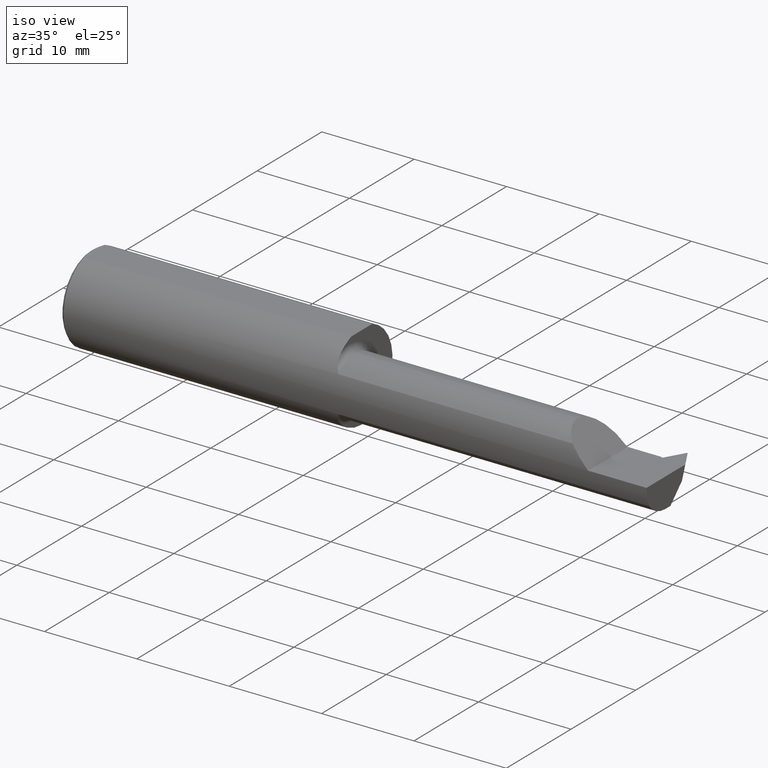
[diagram: clean part render]
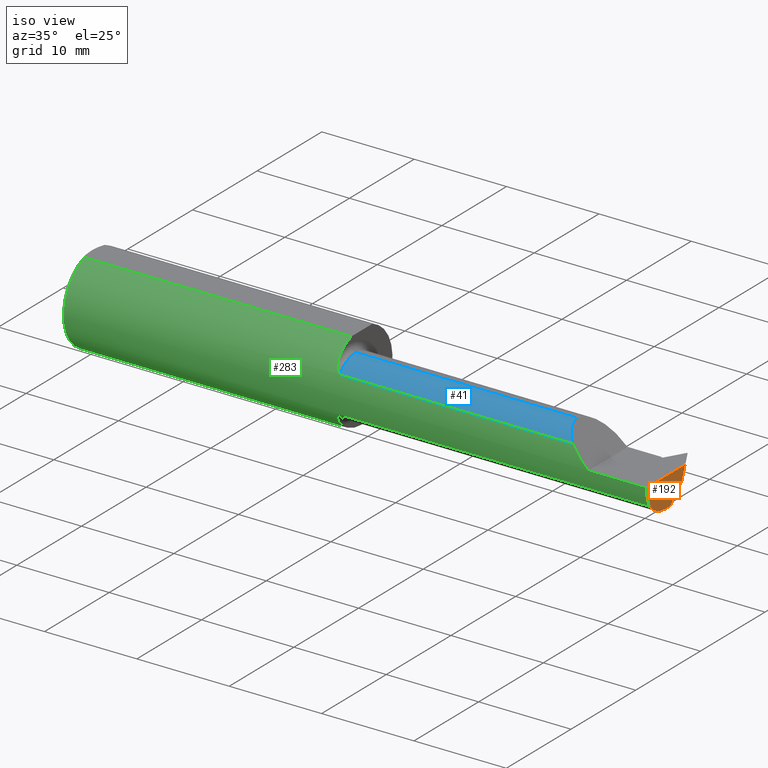
[diagram: same view with three faces highlighted in distinct colors, each labeled with its STEP entity id]
A machine part, iso view with three faces highlighted in distinct colors.
Their STEP definitions:

[orange] entity #192 — the highlighted planar face has unit normal (1, 0, 0).
#3 = ORIENTED_EDGE ( 'NONE', *, *, #866, .T. ) ;
#15 = LINE ( 'NONE', #472, #285 ) ;
#17 = DIRECTION ( 'NONE',  ( 1.000000000000000000, -0.000000000000000000, -0.000000000000000000 ) ) ;
#31 = EDGE_CURVE ( 'NONE', #632, #614, #894, .T. ) ;
#55 = CIRCLE ( 'NONE', #433, 0.1250000000000000000 ) ;
#106 = VECTOR ( 'NONE', #981, 39.37007874015748854 ) ;
#139 = CARTESIAN_POINT ( 'NONE',  ( 2.500000000000000000, -0.1707639599170698019, -0.07706940050007768384 ) ) ;
#147 = VECTOR ( 'NONE', #350, 39.37007874015748854 ) ;
#148 = CARTESIAN_POINT ( 'NONE',  ( 2.500000000000000000, 0.000000000000000000, 0.000000000000000000 ) ) ;
#159 = EDGE_CURVE ( 'NONE', #805, #632, #237, .T. ) ;
#165 = CARTESIAN_POINT ( 'NONE',  ( 2.500000000000000000, -0.07234999999999998377, 0.000000000000000000 ) ) ;
#192 = ADVANCED_FACE ( 'NONE', ( #299 ), #825, .T. ) ;
#212 = ORIENTED_EDGE ( 'NONE', *, *, #403, .T. ) ;
#237 = LINE ( 'NONE', #528, #718 ) ;
#250 = DIRECTION ( 'NONE',  ( 1.000000000000000000, 0.000000000000000000, 0.000000000000000000 ) ) ;
#285 = VECTOR ( 'NONE', #399, 39.37007874015748143 ) ;
#288 = CARTESIAN_POINT ( 'NONE',  ( 2.500000000000000000, -0.07234999999999999765, -0.1249999999999999861 ) ) ;
#294 = CARTESIAN_POINT ( 'NONE',  ( 2.500000000000000000, 0.04278184266129586577, -0.01547243479515399492 ) ) ;
#299 = FACE_OUTER_BOUND ( 'NONE', #637, .T. ) ;
#304 = EDGE_CURVE ( 'NONE', #614, #327, #960, .T. ) ;
#324 = CARTESIAN_POINT ( 'NONE',  ( 2.500000000000000000, -0.1873499999999998222, -6.429183357567480113E-17 ) ) ;
#327 = VERTEX_POINT ( 'NONE', #517 ) ;
#346 = VERTEX_POINT ( 'NONE', #139 ) ;
#350 = DIRECTION ( 'NONE',  ( 0.000000000000000000, -0.3401001459858867815, -0.9403892229818345827 ) ) ;
#372 = DIRECTION ( 'NONE',  ( 0.000000000000000000, 0.000000000000000000, -1.000000000000000000 ) ) ;
#399 = DIRECTION ( 'NONE',  ( -0.000000000000000000, 1.000000000000000000, -2.417245856451656750E-16 ) ) ;
#403 = EDGE_CURVE ( 'NONE', #346, #659, #55, .T. ) ;
#419 = ORIENTED_EDGE ( 'NONE', *, *, #31, .F. ) ;
#422 = CARTESIAN_POINT ( 'NONE',  ( 2.500000000000000000, 0.04837758664047866336, 0.000000000000000000 ) ) ;
#433 = AXIS2_PLACEMENT_3D ( 'NONE', #165, #17, #465 ) ;
#449 = DIRECTION ( 'NONE',  ( 1.000000000000000000, 0.000000000000000000, 0.000000000000000000 ) ) ;
#465 = DIRECTION ( 'NONE',  ( 0.000000000000000000, 0.000000000000000000, 1.000000000000000000 ) ) ;
#472 = CARTESIAN_POINT ( 'NONE',  ( 2.500000000000000000, 0.1395529379841212447, -0.1250000000000000278 ) ) ;
#481 = CARTESIAN_POINT ( 'NONE',  ( 2.500000000000000000, 0.02848634631988948215, -0.05500000000000006967 ) ) ;
#491 = ORIENTED_EDGE ( 'NONE', *, *, #304, .F. ) ;
#506 = CIRCLE ( 'NONE', #584, 0.1873499999999999888 ) ;
#517 = CARTESIAN_POINT ( 'NONE',  ( 2.500000000000000000, -0.04151365368011088880, -0.1249999999999999584 ) ) ;
#528 = CARTESIAN_POINT ( 'NONE',  ( 2.500000000000000000, 0.2999999999999999889, -6.429183357567480113E-17 ) ) ;
#533 = DIRECTION ( 'NONE',  ( -0.000000000000000000, 1.000000000000000000, -0.000000000000000000 ) ) ;
#544 = CARTESIAN_POINT ( 'NONE',  ( 2.500000000000000000, 0.000000000000000000, 0.000000000000000000 ) ) ;
#584 = AXIS2_PLACEMENT_3D ( 'NONE', #544, #250, #863 ) ;
#614 = VERTEX_POINT ( 'NONE', #481 ) ;
#632 = VERTEX_POINT ( 'NONE', #422 ) ;
#637 = EDGE_LOOP ( 'NONE', ( #3, #491, #419, #862, #820, #212 ) ) ;
#659 = VERTEX_POINT ( 'NONE', #288 ) ;
#718 = VECTOR ( 'NONE', #533, 39.37007874015748143 ) ;
#729 = CARTESIAN_POINT ( 'NONE',  ( 2.500000000000000000, 0.02848634631988948215, -0.05500000000000006967 ) ) ;
#805 = VERTEX_POINT ( 'NONE', #324 ) ;
#820 = ORIENTED_EDGE ( 'NONE', *, *, #831, .T. ) ;
#825 = PLANE ( 'NONE',  #958 ) ;
#831 = EDGE_CURVE ( 'NONE', #805, #346, #506, .T. ) ;
#862 = ORIENTED_EDGE ( 'NONE', *, *, #159, .F. ) ;
#863 = DIRECTION ( 'NONE',  ( 0.000000000000000000, 0.000000000000000000, -1.000000000000000000 ) ) ;
#866 = EDGE_CURVE ( 'NONE', #659, #327, #15, .T. ) ;
#894 = LINE ( 'NONE', #294, #147 ) ;
#958 = AXIS2_PLACEMENT_3D ( 'NONE', #148, #449, #372 ) ;
#960 = LINE ( 'NONE', #729, #106 ) ;
#981 = DIRECTION ( 'NONE',  ( 0.000000000000000000, -0.7071067811865497932, -0.7071067811865451302 ) ) ;

[blue] entity #41 — the highlighted cylindrical surface (edge-blend (fillet) strip) has radius 3.175 mm, axis along (-1, -0, -0).
#6 = CARTESIAN_POINT ( 'NONE',  ( 2.142479785539520787, -0.1466433954276125384, 0.1078702144604786056 ) ) ;
#35 = VERTEX_POINT ( 'NONE', #59 ) ;
#41 = ADVANCED_FACE ( 'NONE', ( #978 ), #594, .T. ) ;
#48 = ORIENTED_EDGE ( 'NONE', *, *, #625, .T. ) ;
#59 = CARTESIAN_POINT ( 'NONE',  ( 2.173280599499920918, -0.1707639599170693578, 0.07706940050007844711 ) ) ;
#61 = ORIENTED_EDGE ( 'NONE', *, *, #717, .T. ) ;
#62 = DIRECTION ( 'NONE',  ( 0.000000000000000000, 0.000000000000000000, -1.000000000000000000 ) ) ;
#75 = CARTESIAN_POINT ( 'NONE',  ( 2.173280599499920918, -0.1707639599170693578, 0.07706940050007844711 ) ) ;
#95 = CARTESIAN_POINT ( 'NONE',  ( 2.125349999999999628, -0.1114715001235029451, 0.1250000000000000278 ) ) ;
#100 = AXIS2_PLACEMENT_3D ( 'NONE', #221, #456, #62 ) ;
#104 = LINE ( 'NONE', #792, #651 ) ;
#128 = EDGE_CURVE ( 'NONE', #145, #745, #769, .T. ) ;
#145 = VERTEX_POINT ( 'NONE', #622 ) ;
#186 = EDGE_CURVE ( 'NONE', #145, #35, #934, .T. ) ;
#195 = DIRECTION ( 'NONE',  ( 1.000000000000000000, 0.000000000000000000, 0.000000000000000000 ) ) ;
#218 = VERTEX_POINT ( 'NONE', #781 ) ;
#221 = CARTESIAN_POINT ( 'NONE',  ( 1.180000000000000160, -0.07234999999999998377, 0.000000000000000000 ) ) ;
#245 = CARTESIAN_POINT ( 'NONE',  ( 1.155000000000000027, -0.07234999999999998377, 0.1250000000000000000 ) ) ;
#284 = CARTESIAN_POINT ( 'NONE',  ( 1.155000000000000027, -0.07234999999999998377, 0.000000000000000000 ) ) ;
#378 = DIRECTION ( 'NONE',  ( -1.000000000000000000, -0.000000000000000000, -0.000000000000000000 ) ) ;
#456 = DIRECTION ( 'NONE',  ( 1.000000000000000000, 0.000000000000000000, 0.000000000000000000 ) ) ;
#463 = AXIS2_PLACEMENT_3D ( 'NONE', #284, #512, #816 ) ;
#512 = DIRECTION ( 'NONE',  ( -1.000000000000000000, -0.000000000000000000, -0.000000000000000000 ) ) ;
#538 = CARTESIAN_POINT ( 'NONE',  ( 2.125349999999999184, -0.07234999999999998377, 0.1250000000000000000 ) ) ;
#594 = CYLINDRICAL_SURFACE ( 'NONE', #463, 0.1250000000000000000 ) ;
#622 = CARTESIAN_POINT ( 'NONE',  ( 2.125349999999999184, -0.07234999999999998377, 0.1250000000000000000 ) ) ;
#625 = EDGE_CURVE ( 'NONE', #218, #35, #104, .T. ) ;
#649 = EDGE_LOOP ( 'NONE', ( #799, #953, #61, #48 ) ) ;
#651 = VECTOR ( 'NONE', #195, 39.37007874015748143 ) ;
#696 = CIRCLE ( 'NONE', #100, 0.1250000000000000000 ) ;
#717 = EDGE_CURVE ( 'NONE', #745, #218, #696, .T. ) ;
#745 = VERTEX_POINT ( 'NONE', #815 ) ;
#769 = LINE ( 'NONE', #245, #945 ) ;
#781 = CARTESIAN_POINT ( 'NONE',  ( 1.180000000000000160, -0.1707639599170698019, 0.07706940050007766996 ) ) ;
#792 = CARTESIAN_POINT ( 'NONE',  ( 1.777500000000000080, -0.1707639599170698019, 0.07706940050007766996 ) ) ;
#799 = ORIENTED_EDGE ( 'NONE', *, *, #186, .F. ) ;
#815 = CARTESIAN_POINT ( 'NONE',  ( 1.180000000000000160, -0.07234999999999998377, 0.1250000000000000000 ) ) ;
#816 = DIRECTION ( 'NONE',  ( 0.000000000000000000, 0.000000000000000000, 1.000000000000000000 ) ) ;
#934 =( BOUNDED_CURVE ( )  B_SPLINE_CURVE ( 3, ( #538, #95, #6, #75 ),
 .UNSPECIFIED., .F., .F. ) 
 B_SPLINE_CURVE_WITH_KNOTS ( ( 4, 4 ),
 ( 0.000000000000000000, 0.9064365498903661500 ),
 .UNSPECIFIED. ) 
 CURVE ( )  GEOMETRIC_REPRESENTATION_ITEM ( )  RATIONAL_B_SPLINE_CURVE ( ( 1.000000000000000000, 0.9326950686634400967, 0.9326950686634400967, 1.000000000000000000 ) ) 
 REPRESENTATION_ITEM ( '' )  );
#945 = VECTOR ( 'NONE', #378, 39.37007874015748143 ) ;
#953 = ORIENTED_EDGE ( 'NONE', *, *, #128, .T. ) ;
#978 = FACE_OUTER_BOUND ( 'NONE', #649, .T. ) ;

[green] entity #283 — the highlighted cylindrical surface (partial cylindrical patch) has radius 4.7587 mm, axis along (-1, -0, -0).
#2 = CARTESIAN_POINT ( 'NONE',  ( 1.155424272813302844, -0.1340287381043765713, 0.1311054684688081062 ) ) ;
#7 = CARTESIAN_POINT ( 'NONE',  ( 1.176406265684706742, -0.1703893073657099799, 0.07790344355110682961 ) ) ;
#16 = EDGE_CURVE ( 'NONE', #564, #267, #25, .T. ) ;
#25 = CIRCLE ( 'NONE', #352, 0.1873499999999999888 ) ;
#35 = VERTEX_POINT ( 'NONE', #59 ) ;
#47 = LINE ( 'NONE', #563, #787 ) ;
#59 = CARTESIAN_POINT ( 'NONE',  ( 2.173280599499920918, -0.1707639599170693578, 0.07706940050007844711 ) ) ;
#72 = ORIENTED_EDGE ( 'NONE', *, *, #831, .F. ) ;
#76 = CARTESIAN_POINT ( 'NONE',  ( 1.158207941101452310, -0.1482224317505124178, 0.1148057762150967998 ) ) ;
#78 = DIRECTION ( 'NONE',  ( 1.000000000000000000, 0.000000000000000000, 0.000000000000000000 ) ) ;
#88 = EDGE_CURVE ( 'NONE', #707, #35, #90, .T. ) ;
#90 =( BOUNDED_CURVE ( )  B_SPLINE_CURVE ( 3, ( #394, #616, #607, #307 ),
 .UNSPECIFIED., .F., .T. ) 
 B_SPLINE_CURVE_WITH_KNOTS ( ( 4, 4 ),
 ( 4.714257142666966161, 5.136341099405672850 ),
 .UNSPECIFIED. ) 
 CURVE ( )  GEOMETRIC_REPRESENTATION_ITEM ( )  RATIONAL_B_SPLINE_CURVE ( ( 1.000000000000000000, 0.9852087820824323439, 0.9852087820824323439, 1.000000000000000000 ) ) 
 REPRESENTATION_ITEM ( '' )  );
#92 = CARTESIAN_POINT ( 'NONE',  ( 1.178119196786478584, -0.1707639599170698019, 0.07706940050007766996 ) ) ;
#97 = ORIENTED_EDGE ( 'NONE', *, *, #275, .T. ) ;
#102 = DIRECTION ( 'NONE',  ( 0.000000000000000000, 0.000000000000000000, 1.000000000000000000 ) ) ;
#104 = LINE ( 'NONE', #792, #651 ) ;
#115 = EDGE_CURVE ( 'NONE', #346, #256, #695, .T. ) ;
#119 = CARTESIAN_POINT ( 'NONE',  ( 1.155000000000000027, -0.1232518659295093050, 0.1410992560040422727 ) ) ;
#139 = CARTESIAN_POINT ( 'NONE',  ( 2.500000000000000000, -0.1707639599170698019, -0.07706940050007768384 ) ) ;
#141 = EDGE_CURVE ( 'NONE', #524, #899, #164, .T. ) ;
#142 = CARTESIAN_POINT ( 'NONE',  ( 1.173606395404012348, -0.1693970531853373485, -0.08003777040702697576 ) ) ;
#143 = CARTESIAN_POINT ( 'NONE',  ( 1.155000000000000027, 0.000000000000000000, 0.000000000000000000 ) ) ;
#152 = CARTESIAN_POINT ( 'NONE',  ( 1.155000000000000027, 0.000000000000000000, 0.000000000000000000 ) ) ;
#153 = CARTESIAN_POINT ( 'NONE',  ( 1.777500000000000080, -0.1707639599170698019, -0.07706940050007766996 ) ) ;
#155 = CARTESIAN_POINT ( 'NONE',  ( 1.172402770576354447, -0.1687580686002390362, 0.08138221229323124029 ) ) ;
#164 = LINE ( 'NONE', #927, #167 ) ;
#167 = VECTOR ( 'NONE', #230, 39.37007874015748143 ) ;
#176 = VERTEX_POINT ( 'NONE', #774 ) ;
#179 = CARTESIAN_POINT ( 'NONE',  ( 1.155000000000000027, -0.06325108694718215019, 0.1763499999999999790 ) ) ;
#195 = DIRECTION ( 'NONE',  ( 1.000000000000000000, 0.000000000000000000, 0.000000000000000000 ) ) ;
#199 = ORIENTED_EDGE ( 'NONE', *, *, #772, .F. ) ;
#215 = DIRECTION ( 'NONE',  ( -1.000000000000000000, -0.000000000000000000, -0.000000000000000000 ) ) ;
#218 = VERTEX_POINT ( 'NONE', #781 ) ;
#228 = EDGE_CURVE ( 'NONE', #445, #707, #621, .T. ) ;
#230 = DIRECTION ( 'NONE',  ( -1.000000000000000000, -0.000000000000000000, -0.000000000000000000 ) ) ;
#250 = DIRECTION ( 'NONE',  ( 1.000000000000000000, 0.000000000000000000, 0.000000000000000000 ) ) ;
#256 = VERTEX_POINT ( 'NONE', #744 ) ;
#267 = VERTEX_POINT ( 'NONE', #286 ) ;
#275 = EDGE_CURVE ( 'NONE', #805, #445, #896, .T. ) ;
#283 = ADVANCED_FACE ( 'NONE', ( #504 ), #889, .T. ) ;
#286 = CARTESIAN_POINT ( 'NONE',  ( 1.155000000000000027, 0.06325108694718213631, 0.1763499999999999790 ) ) ;
#289 = AXIS2_PLACEMENT_3D ( 'NONE', #325, #400, #102 ) ;
#295 = CARTESIAN_POINT ( 'NONE',  ( 0.01500000000000079568, 0.000000000000000000, 0.000000000000000000 ) ) ;
#306 = CIRCLE ( 'NONE', #321, 0.1873499999999999888 ) ;
#307 = CARTESIAN_POINT ( 'NONE',  ( 2.173280599499920918, -0.1707639599170693578, 0.07706940050007844711 ) ) ;
#321 = AXIS2_PLACEMENT_3D ( 'NONE', #295, #595, #691 ) ;
#324 = CARTESIAN_POINT ( 'NONE',  ( 2.500000000000000000, -0.1873499999999998222, -6.429183357567480113E-17 ) ) ;
#325 = CARTESIAN_POINT ( 'NONE',  ( 2.250000000000000000, 0.000000000000000000, 0.000000000000000000 ) ) ;
#328 = DIRECTION ( 'NONE',  ( 0.000000000000000000, 0.000000000000000000, -1.000000000000000000 ) ) ;
#345 = CARTESIAN_POINT ( 'NONE',  ( 2.250000000000000000, -0.1873496730715054903, 0.0003499999999991848933 ) ) ;
#346 = VERTEX_POINT ( 'NONE', #139 ) ;
#352 = AXIS2_PLACEMENT_3D ( 'NONE', #143, #738, #429 ) ;
#358 = CARTESIAN_POINT ( 'NONE',  ( 2.500000000000000000, 0.000000000000000000, 0.000000000000000000 ) ) ;
#362 = CARTESIAN_POINT ( 'NONE',  ( 1.169299808151414100, -0.1667638676707169643, -0.08543442767820326467 ) ) ;
#373 = EDGE_CURVE ( 'NONE', #402, #176, #306, .T. ) ;
#375 = CARTESIAN_POINT ( 'NONE',  ( 1.157031986092417419, -0.1437385609081069382, 0.1203809478627894530 ) ) ;
#377 = DIRECTION ( 'NONE',  ( 0.000000000000000000, 0.000000000000000000, -1.000000000000000000 ) ) ;
#385 = CARTESIAN_POINT ( 'NONE',  ( 1.161436535702075945, -0.1564726682735308183, 0.1032790376104839730 ) ) ;
#394 = CARTESIAN_POINT ( 'NONE',  ( 2.250000000000000000, -0.1873496730715054903, 0.0003499999999991848933 ) ) ;
#400 = DIRECTION ( 'NONE',  ( -1.000000000000000000, -0.000000000000000000, -0.000000000000000000 ) ) ;
#402 = VERTEX_POINT ( 'NONE', #542 ) ;
#414 = AXIS2_PLACEMENT_3D ( 'NONE', #152, #78, #377 ) ;
#429 = DIRECTION ( 'NONE',  ( 0.000000000000000000, 0.000000000000000000, -1.000000000000000000 ) ) ;
#432 = ORIENTED_EDGE ( 'NONE', *, *, #88, .T. ) ;
#437 = EDGE_CURVE ( 'NONE', #218, #556, #574, .T. ) ;
#442 = CARTESIAN_POINT ( 'NONE',  ( 1.178132574457247728, -0.1707639599170698297, -0.07706940050007773935 ) ) ;
#445 = VERTEX_POINT ( 'NONE', #909 ) ;
#462 = CARTESIAN_POINT ( 'NONE',  ( 0.01500000000000079568, 0.000000000000000000, 0.000000000000000000 ) ) ;
#466 = ORIENTED_EDGE ( 'NONE', *, *, #16, .F. ) ;
#468 = DIRECTION ( 'NONE',  ( -1.000000000000000000, -0.000000000000000000, -0.000000000000000000 ) ) ;
#504 = FACE_OUTER_BOUND ( 'NONE', #568, .T. ) ;
#506 = CIRCLE ( 'NONE', #584, 0.1873499999999999888 ) ;
#513 = DIRECTION ( 'NONE',  ( 0.000000000000000000, 0.000000000000000000, 1.000000000000000000 ) ) ;
#518 = ORIENTED_EDGE ( 'NONE', *, *, #373, .T. ) ;
#520 = CARTESIAN_POINT ( 'NONE',  ( 1.172430508348289102, -0.1687732045416835691, -0.08135065796925480819 ) ) ;
#524 = VERTEX_POINT ( 'NONE', #179 ) ;
#535 = CARTESIAN_POINT ( 'NONE',  ( 1.169265545959849550, -0.1667364282984898916, 0.08548857678050772457 ) ) ;
#542 = CARTESIAN_POINT ( 'NONE',  ( 0.01500000000000079568, 0.000000000000000000, -0.1873499999999999888 ) ) ;
#544 = CARTESIAN_POINT ( 'NONE',  ( 2.500000000000000000, 0.000000000000000000, 0.000000000000000000 ) ) ;
#556 = VERTEX_POINT ( 'NONE', #119 ) ;
#559 = CARTESIAN_POINT ( 'NONE',  ( 1.155000000000000027, -0.1232518659295093050, -0.1410992560040422727 ) ) ;
#563 = CARTESIAN_POINT ( 'NONE',  ( 2.500000000000000000, 0.06325108694718213631, 0.1763499999999999790 ) ) ;
#564 = VERTEX_POINT ( 'NONE', #559 ) ;
#568 = EDGE_LOOP ( 'NONE', ( #868, #72, #97, #876, #432, #669, #749, #199, #571, #872, #518, #904, #466, #810 ) ) ;
#571 = ORIENTED_EDGE ( 'NONE', *, *, #141, .T. ) ;
#574 = B_SPLINE_CURVE_WITH_KNOTS ( 'NONE', 3,
 ( #770, #92, #7, #608, #155, #535, #754, #838, #385, #76, #375, #2, #601, #697 ),
 .UNSPECIFIED., .F., .F.,
 ( 4, 2, 2, 2, 2, 2, 4 ),
 ( 0.000000000000000000, 0.0001403017184444773691, 0.0002806034368889547383, 0.0005612068737779144639, 0.001122413747555828711, 0.001683620621333742958, 0.002244827495111656988 ),
 .UNSPECIFIED. ) ;
#584 = AXIS2_PLACEMENT_3D ( 'NONE', #544, #250, #863 ) ;
#589 = CARTESIAN_POINT ( 'NONE',  ( 1.167704374933954625, -0.1652286770924342174, -0.08837992419368190244 ) ) ;
#593 = CARTESIAN_POINT ( 'NONE',  ( 1.155000000000000471, -0.1343272889970693607, -0.1314247431986991232 ) ) ;
#595 = DIRECTION ( 'NONE',  ( 1.000000000000000000, -0.000000000000000000, -0.000000000000000000 ) ) ;
#597 = B_SPLINE_CURVE_WITH_KNOTS ( 'NONE', 3,
 ( #892, #593, #830, #902, #983, #589, #362, #520, #142, #824, #442, #604 ),
 .UNSPECIFIED., .F., .F.,
 ( 4, 2, 2, 2, 2, 4 ),
 ( 0.000000000000000000, 0.001104617015978696893, 0.001656925523968045448, 0.001933079777962719726, 0.002071156904960056323, 0.002209234031957392919 ),
 .UNSPECIFIED. ) ;
#601 = CARTESIAN_POINT ( 'NONE',  ( 1.155000000000000027, -0.1287813884456101010, 0.1362691528049925216 ) ) ;
#604 = CARTESIAN_POINT ( 'NONE',  ( 1.180000000000000160, -0.1707639599170698019, -0.07706940050007766996 ) ) ;
#607 = CARTESIAN_POINT ( 'NONE',  ( 2.197486258657502134, -0.1816884877910424079, 0.05286374134249727241 ) ) ;
#608 = CARTESIAN_POINT ( 'NONE',  ( 1.173558876738253876, -0.1693773766851885965, 0.08007975305238286545 ) ) ;
#616 = CARTESIAN_POINT ( 'NONE',  ( 2.223443328839086242, -0.1873000608423838198, 0.02690667116091345970 ) ) ;
#621 = CIRCLE ( 'NONE', #289, 0.1873499999999999888 ) ;
#625 = EDGE_CURVE ( 'NONE', #218, #35, #104, .T. ) ;
#635 = EDGE_CURVE ( 'NONE', #176, #267, #47, .T. ) ;
#651 = VECTOR ( 'NONE', #195, 39.37007874015748143 ) ;
#662 = EDGE_CURVE ( 'NONE', #564, #256, #597, .T. ) ;
#667 = VECTOR ( 'NONE', #468, 39.37007874015748143 ) ;
#669 = ORIENTED_EDGE ( 'NONE', *, *, #625, .F. ) ;
#691 = DIRECTION ( 'NONE',  ( 0.000000000000000000, 0.000000000000000000, -1.000000000000000000 ) ) ;
#695 = LINE ( 'NONE', #153, #667 ) ;
#697 = CARTESIAN_POINT ( 'NONE',  ( 1.155000000000000027, -0.1232518659295093050, 0.1410992560040422727 ) ) ;
#707 = VERTEX_POINT ( 'NONE', #345 ) ;
#735 = VECTOR ( 'NONE', #821, 39.37007874015748143 ) ;
#738 = DIRECTION ( 'NONE',  ( 1.000000000000000000, 0.000000000000000000, 0.000000000000000000 ) ) ;
#744 = CARTESIAN_POINT ( 'NONE',  ( 1.180000000000000160, -0.1707639599170698019, -0.07706940050007766996 ) ) ;
#749 = ORIENTED_EDGE ( 'NONE', *, *, #437, .T. ) ;
#754 = CARTESIAN_POINT ( 'NONE',  ( 1.167679829691370630, -0.1652024577544480843, 0.08842811073770921737 ) ) ;
#763 = CIRCLE ( 'NONE', #414, 0.1873499999999999888 ) ;
#768 = CARTESIAN_POINT ( 'NONE',  ( 0.01500000000000079048, -0.06325108694718213631, 0.1763499999999999790 ) ) ;
#770 = CARTESIAN_POINT ( 'NONE',  ( 1.180000000000000160, -0.1707639599170698019, 0.07706940050007766996 ) ) ;
#772 = EDGE_CURVE ( 'NONE', #524, #556, #763, .T. ) ;
#774 = CARTESIAN_POINT ( 'NONE',  ( 0.01500000000000079568, 0.06325108694718213631, 0.1763499999999999790 ) ) ;
#781 = CARTESIAN_POINT ( 'NONE',  ( 1.180000000000000160, -0.1707639599170698019, 0.07706940050007766996 ) ) ;
#785 = DIRECTION ( 'NONE',  ( 1.000000000000000000, -0.000000000000000000, -0.000000000000000000 ) ) ;
#787 = VECTOR ( 'NONE', #871, 39.37007874015748143 ) ;
#792 = CARTESIAN_POINT ( 'NONE',  ( 1.777500000000000080, -0.1707639599170698019, 0.07706940050007766996 ) ) ;
#805 = VERTEX_POINT ( 'NONE', #324 ) ;
#810 = ORIENTED_EDGE ( 'NONE', *, *, #662, .T. ) ;
#813 = CARTESIAN_POINT ( 'NONE',  ( 2.500000000000000000, -0.1873499999999999888, -6.429183357567480113E-17 ) ) ;
#821 = DIRECTION ( 'NONE',  ( -1.000000000000000000, -0.000000000000000000, -0.000000000000000000 ) ) ;
#824 = CARTESIAN_POINT ( 'NONE',  ( 1.176412728618681180, -0.1703887611576448136, -0.07790427710188348176 ) ) ;
#830 = CARTESIAN_POINT ( 'NONE',  ( 1.156555970616603979, -0.1439812988895032841, -0.1207222593517345566 ) ) ;
#831 = EDGE_CURVE ( 'NONE', #805, #346, #506, .T. ) ;
#838 = CARTESIAN_POINT ( 'NONE',  ( 1.163471533398396485, -0.1602710687746327356, 0.09725558226055724953 ) ) ;
#847 = AXIS2_PLACEMENT_3D ( 'NONE', #358, #215, #513 ) ;
#863 = DIRECTION ( 'NONE',  ( 0.000000000000000000, 0.000000000000000000, -1.000000000000000000 ) ) ;
#868 = ORIENTED_EDGE ( 'NONE', *, *, #115, .F. ) ;
#871 = DIRECTION ( 'NONE',  ( 1.000000000000000000, 0.000000000000000000, 0.000000000000000000 ) ) ;
#872 = ORIENTED_EDGE ( 'NONE', *, *, #888, .T. ) ;
#876 = ORIENTED_EDGE ( 'NONE', *, *, #228, .T. ) ;
#888 = EDGE_CURVE ( 'NONE', #899, #402, #971, .T. ) ;
#889 = CYLINDRICAL_SURFACE ( 'NONE', #847, 0.1873499999999999888 ) ;
#892 = CARTESIAN_POINT ( 'NONE',  ( 1.155000000000000027, -0.1232518659295093050, -0.1410992560040422727 ) ) ;
#896 = LINE ( 'NONE', #813, #735 ) ;
#899 = VERTEX_POINT ( 'NONE', #768 ) ;
#902 = CARTESIAN_POINT ( 'NONE',  ( 1.161432066522876116, -0.1564710502669967862, -0.1032857535508500957 ) ) ;
#904 = ORIENTED_EDGE ( 'NONE', *, *, #635, .T. ) ;
#909 = CARTESIAN_POINT ( 'NONE',  ( 2.250000000000000000, -0.1873499999999999610, -6.429183357567478880E-17 ) ) ;
#921 = AXIS2_PLACEMENT_3D ( 'NONE', #462, #785, #328 ) ;
#927 = CARTESIAN_POINT ( 'NONE',  ( 2.500000000000000000, -0.06325108694718213631, 0.1763499999999999790 ) ) ;
#971 = CIRCLE ( 'NONE', #921, 0.1873499999999999888 ) ;
#983 = CARTESIAN_POINT ( 'NONE',  ( 1.163464385422889880, -0.1602677418389839570, -0.09726402398944672401 ) ) ;